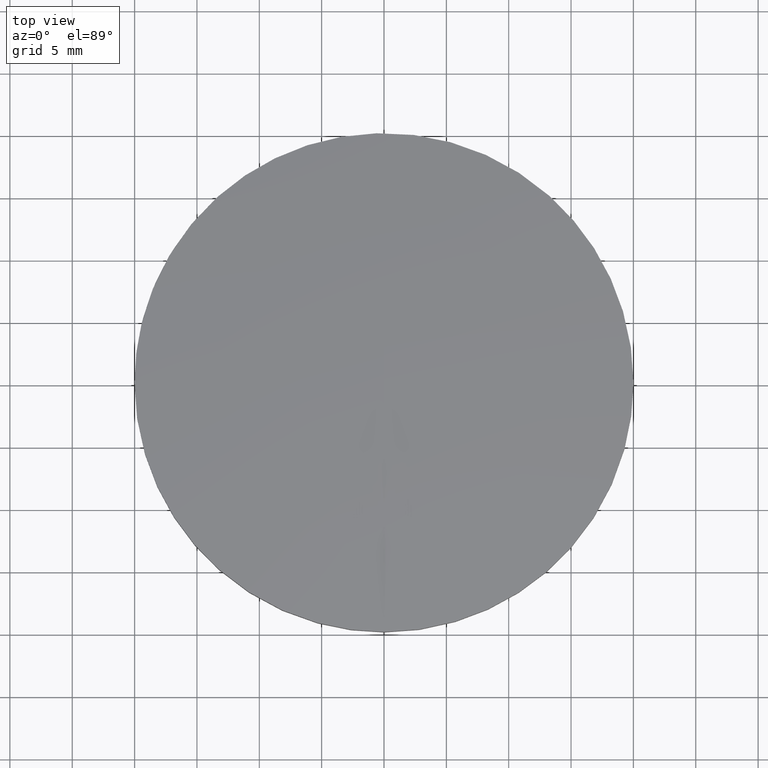
[diagram: clean part render]
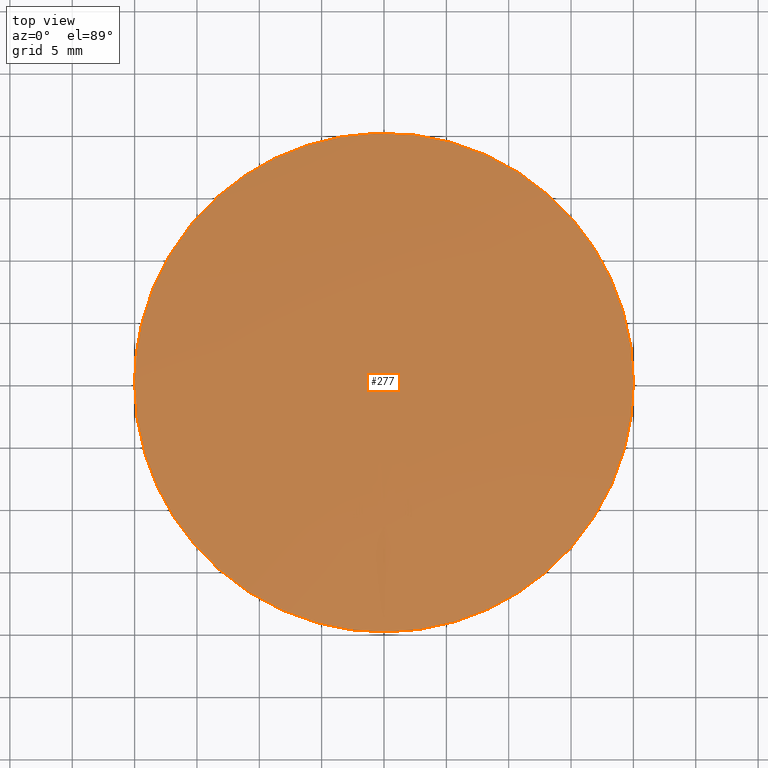
[diagram: same view with one face highlighted and labeled with its STEP entity id]
A machine part, top view. The second image highlights one B-rep face of the part: STEP entity #277.
In plain terms, the highlighted spherical surface has radius 200 mm.
Its self-contained STEP definition (entity closure, byte-faithful):
#11 = CARTESIAN_POINT ( 'NONE',  ( -20.00000000000000000, 2.449293598294709668E-15, 14.49748742132399926 ) ) ;
#17 =( BOUNDED_CURVE ( )  B_SPLINE_CURVE ( 2, ( #11, #646, #283, #126, #358 ),
 .UNSPECIFIED., .F., .T. ) 
 B_SPLINE_CURVE_WITH_KNOTS ( ( 3, 2, 3 ),
 ( 3.141592653589790007, 4.712388980384689674, 6.283185307179590673 ),
 .UNSPECIFIED. ) 
 CURVE ( )  GEOMETRIC_REPRESENTATION_ITEM ( )  RATIONAL_B_SPLINE_CURVE ( ( 1.000000000000000000, 0.7071067811865480168, 1.000000000000000000, 0.7071067811865480168, 1.000000000000000000 ) ) 
 REPRESENTATION_ITEM ( '' )  );
#34 = DIRECTION ( 'NONE',  ( 2.511252360287628943E-16, 2.775557561562891844E-16, 1.000000000000000000 ) ) ;
#116 = CARTESIAN_POINT ( 'NONE',  ( -19.99999999999999645, 19.99999999999999645, 14.49748742132399570 ) ) ;
#126 = CARTESIAN_POINT ( 'NONE',  ( 19.99999999999999645, -19.99999999999999645, 14.49748742132399570 ) ) ;
#147 = DIRECTION ( 'NONE',  ( 2.905857598783209947E-16, -1.000000000000000000, 2.775557561562891351E-16 ) ) ;
#151 = CARTESIAN_POINT ( 'NONE',  ( -20.00000000000000000, 2.449293598294709668E-15, 14.49748742132399926 ) ) ;
#184 = CARTESIAN_POINT ( 'NONE',  ( -20.00000000000000000, 2.449293598294709668E-15, 14.49748742132399926 ) ) ;
#187 = VERTEX_POINT ( 'NONE', #386 ) ;
#203 = FACE_OUTER_BOUND ( 'NONE', #708, .T. ) ;
#224 = CARTESIAN_POINT ( 'NONE',  ( 1.224646799147349904E-15, 20.00000000000000000, 14.49748742132399926 ) ) ;
#277 = ADVANCED_FACE ( 'NONE', ( #203 ), #448, .T. ) ;
#283 = CARTESIAN_POINT ( 'NONE',  ( -3.673940397442059967E-15, -20.00000000000000000, 14.49748742132399926 ) ) ;
#305 = VERTEX_POINT ( 'NONE', #151 ) ;
#358 = CARTESIAN_POINT ( 'NONE',  ( 20.00000000000000000, 0.000000000000000000, 14.49748742132399926 ) ) ;
#386 = CARTESIAN_POINT ( 'NONE',  ( 20.00000000000000000, 0.000000000000000000, 14.49748742132399926 ) ) ;
#416 = CARTESIAN_POINT ( 'NONE',  ( 19.99999999999999645, 19.99999999999999645, 14.49748742132399570 ) ) ;
#421 = ORIENTED_EDGE ( 'NONE', *, *, #459, .T. ) ;
#448 = SPHERICAL_SURFACE ( 'NONE', #596, 200.0000000000000000 ) ;
#459 = EDGE_CURVE ( 'NONE', #187, #305, #530, .T. ) ;
#475 = EDGE_CURVE ( 'NONE', #305, #187, #17, .T. ) ;
#479 = ORIENTED_EDGE ( 'NONE', *, *, #475, .T. ) ;
#530 =( BOUNDED_CURVE ( )  B_SPLINE_CURVE ( 2, ( #635, #416, #224, #116, #184 ),
 .UNSPECIFIED., .F., .T. ) 
 B_SPLINE_CURVE_WITH_KNOTS ( ( 3, 2, 3 ),
 ( 0.000000000000000000, 1.570796326794899889, 3.141592653589790007 ),
 .UNSPECIFIED. ) 
 CURVE ( )  GEOMETRIC_REPRESENTATION_ITEM ( )  RATIONAL_B_SPLINE_CURVE ( ( 1.000000000000000000, 0.7071067811865480168, 1.000000000000000000, 0.7071067811865480168, 1.000000000000000000 ) ) 
 REPRESENTATION_ITEM ( '' )  );
#555 = CARTESIAN_POINT ( 'NONE',  ( 4.263256414560599853E-14, -1.421085471520200056E-14, -184.5000000000000000 ) ) ;
#596 = AXIS2_PLACEMENT_3D ( 'NONE', #555, #34, #147 ) ;
#635 = CARTESIAN_POINT ( 'NONE',  ( 20.00000000000000000, 0.000000000000000000, 14.49748742132399926 ) ) ;
#646 = CARTESIAN_POINT ( 'NONE',  ( -19.99999999999999645, -19.99999999999999645, 14.49748742132399570 ) ) ;
#708 = EDGE_LOOP ( 'NONE', ( #421, #479 ) ) ;